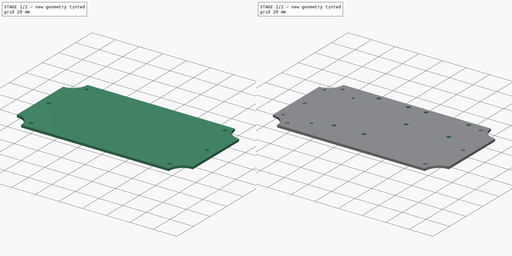
[diagram: build sequence overview — one tinted view per stage of 2, left to right]
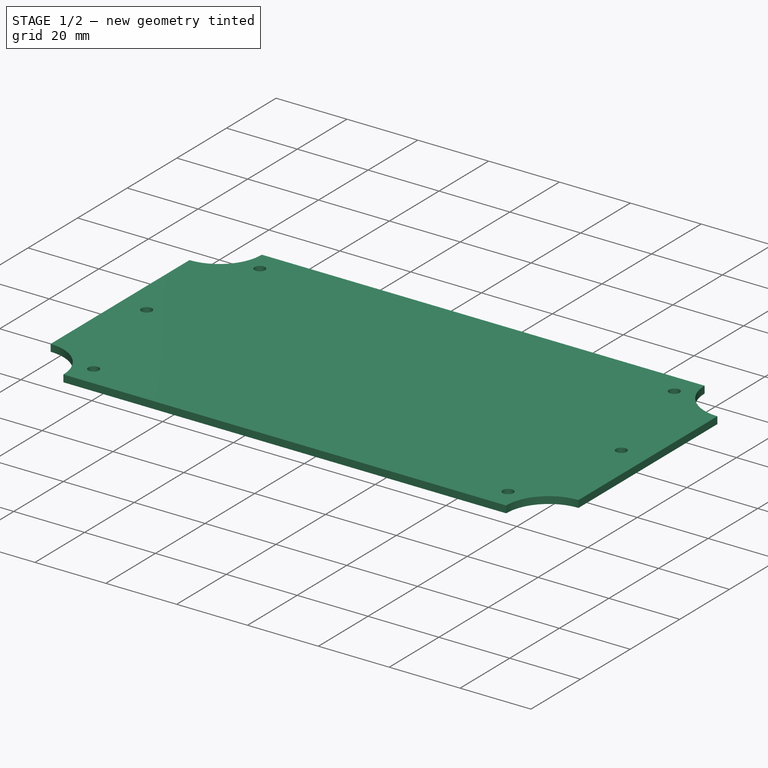
[diagram: stage 1 of 2 — iso view after this stage's code; geometry added in this stage tinted green]
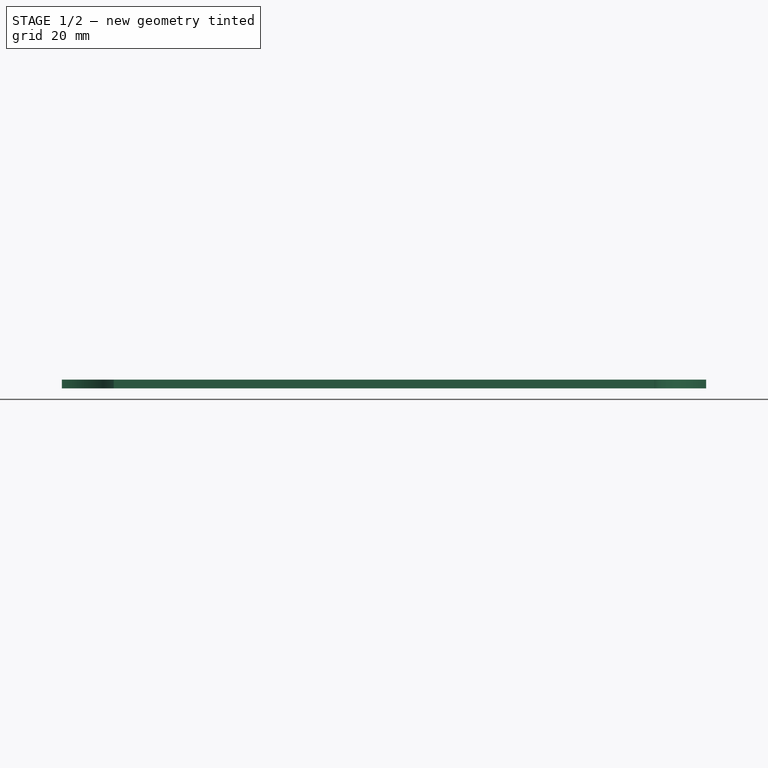
[diagram: stage 1 of 2 — front view after this stage's code; geometry added in this stage tinted green]
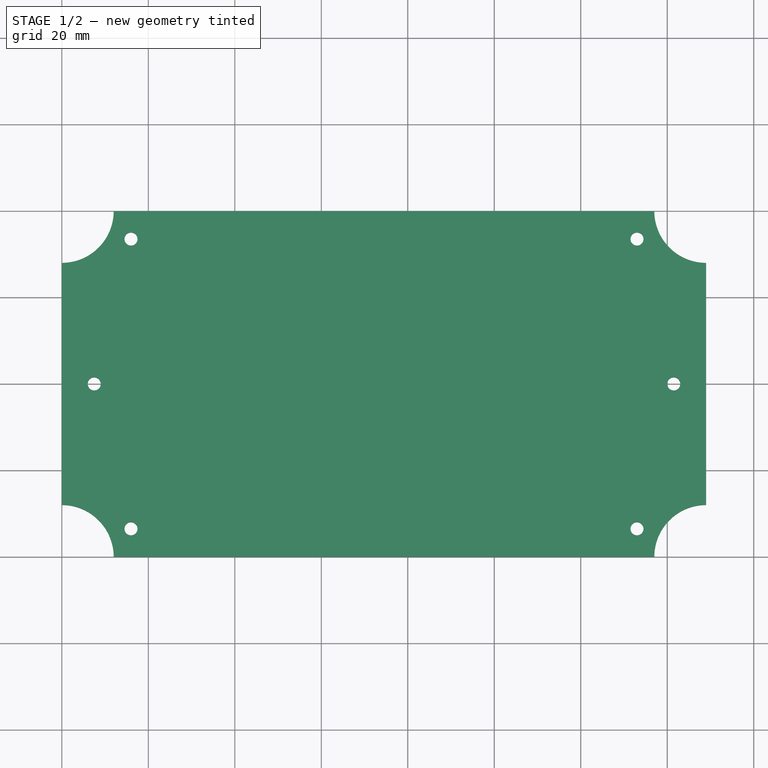
[diagram: stage 1 of 2 — top view after this stage's code; geometry added in this stage tinted green]
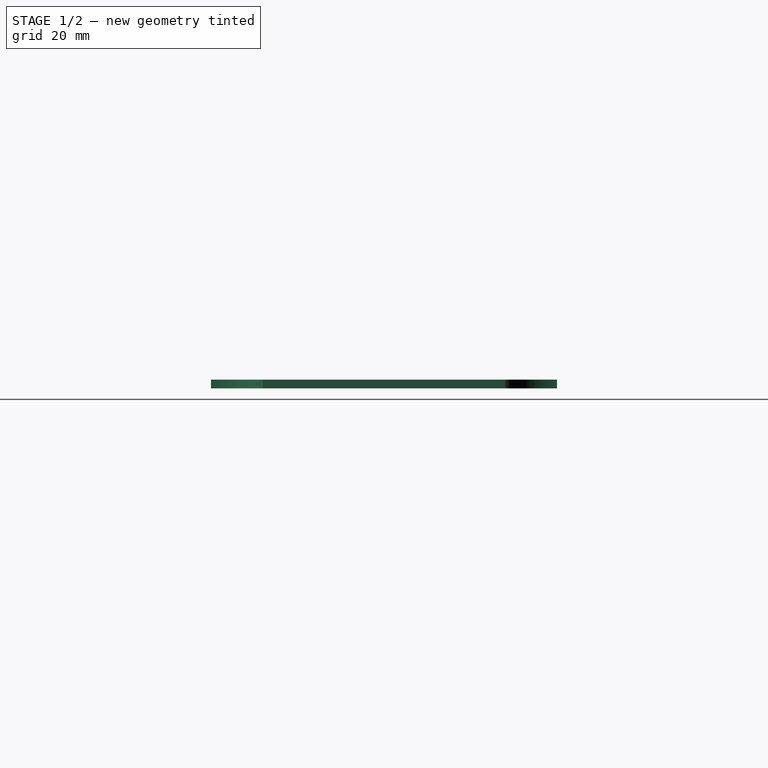
[diagram: stage 1 of 2 — right view after this stage's code; geometry added in this stage tinted green]
FCSTD DOCUMENT  (FreeCAD 0.21R33694 (Git))
Label: fuel-sensor
License: All rights reserved
LicenseURL: http://en.wikipedia.org/wiki/All_rights_reserved
objects: Sketcher::SketchObject×2, PartDesign::Pad×1, PartDesign::Pocket×1, PartDesign::Body×1
note: 7 computed .brp shape members not serialized (recipe doc carries the construction recipe); baked Part::Feature solids carry a one-line shape summary decoded from their .brp

FEATURE [Sketcher::SketchObject] Sketch
  FullyConstrained = true
  MapMode = 5
  Support = -> [XY_Plane]
  sketch-geometry (43):
    g0: LineSegment StartX=-2 StartY=82 StartZ=0 EndX=151 EndY=82 EndZ=0
    g1: LineSegment StartX=151 StartY=82 StartZ=0 EndX=151 EndY=-2 EndZ=0
    g2: LineSegment StartX=151 StartY=-2 StartZ=0 EndX=-2 EndY=-2 EndZ=0
    g3: LineSegment StartX=-2 StartY=-2 StartZ=0 EndX=-2 EndY=82 EndZ=0
    g4: ArcOfCircle CenterX=-2 CenterY=82 CenterZ=0 NormalX=0 NormalY=0 NormalZ=1 AngleXU=0 Radius=10 StartAngle=4.71239 EndAngle=6.28319
    g5: ArcOfCircle CenterX=-2 CenterY=-2 CenterZ=0 NormalX=0 NormalY=0 NormalZ=1 AngleXU=0 Radius=10 StartAngle=0 EndAngle=1.5708
    g6: ArcOfCircle CenterX=151 CenterY=-2 CenterZ=0 NormalX=0 NormalY=0 NormalZ=1 AngleXU=0 Radius=10 StartAngle=1.5708 EndAngle=3.14159
    g7: ArcOfCircle CenterX=151 CenterY=82 CenterZ=0 NormalX=0 NormalY=0 NormalZ=1 AngleXU=0 Radius=10 StartAngle=3.14159 EndAngle=4.71239
    g8: LineSegment StartX=16 StartY=73.5 StartZ=0 EndX=133 EndY=73.5 EndZ=0
    g9: LineSegment StartX=133 StartY=73.5 StartZ=0 EndX=133 EndY=6.5 EndZ=0
    g10: LineSegment StartX=133 StartY=6.5 StartZ=0 EndX=16 EndY=6.5 EndZ=0
    g11: LineSegment StartX=16 StartY=6.5 StartZ=0 EndX=16 EndY=73.5 EndZ=0
    g12: LineSegment StartX=7.5 StartY=40 StartZ=0 EndX=141.5 EndY=40 EndZ=0
    g13: LineSegment StartX=16 StartY=73.5 StartZ=0 EndX=7.5 EndY=40 EndZ=0
    g14: LineSegment StartX=7.5 StartY=40 StartZ=0 EndX=16 EndY=6.5 EndZ=0
    g15: LineSegment StartX=133 StartY=6.5 StartZ=0 EndX=141.5 EndY=40 EndZ=0
    g16: LineSegment StartX=141.5 StartY=40 StartZ=0 EndX=133 EndY=73.5 EndZ=0
    g17: Circle CenterX=16 CenterY=73.5 CenterZ=0 NormalX=0 NormalY=0 NormalZ=1 AngleXU=0 Radius=1.5
    g18: Circle CenterX=7.5 CenterY=40 CenterZ=0 NormalX=0 NormalY=0 NormalZ=1 AngleXU=0 Radius=1.5
    g19: Circle CenterX=16 CenterY=6.5 CenterZ=0 NormalX=0 NormalY=0 NormalZ=1 AngleXU=0 Radius=1.5
    g20: Circle CenterX=133 CenterY=6.5 CenterZ=0 NormalX=0 NormalY=0 NormalZ=1 AngleXU=0 Radius=1.5
    g21: Circle CenterX=141.5 CenterY=40 CenterZ=0 NormalX=0 NormalY=0 NormalZ=1 AngleXU=0 Radius=1.5
    g22: Circle CenterX=133 CenterY=73.5 CenterZ=0 NormalX=0 NormalY=0 NormalZ=1 AngleXU=0 Radius=1.5
    g23: LineSegment StartX=16 StartY=6.5 StartZ=0 EndX=-2 EndY=-2 EndZ=0
    g24: LineSegment StartX=-2 StartY=82 StartZ=0 EndX=16 EndY=73.5 EndZ=0
    g25: LineSegment StartX=133 StartY=73.5 StartZ=0 EndX=151 EndY=82 EndZ=0
    g26: LineSegment StartX=133 StartY=6.5 StartZ=0 EndX=151 EndY=-2 EndZ=0
    g27: LineSegment StartX=0 StartY=80 StartZ=0 EndX=149 EndY=80 EndZ=0
    g28: LineSegment StartX=149 StartY=80 StartZ=0 EndX=149 EndY=0 EndZ=0
    g29: LineSegment StartX=149 StartY=0 StartZ=0 EndX=0 EndY=0 EndZ=0
    g30: LineSegment StartX=0 StartY=0 StartZ=0 EndX=0 EndY=80 EndZ=0
    g31: LineSegment StartX=0 StartY=68 StartZ=0 EndX=0 EndY=12 EndZ=0
    g32: LineSegment StartX=12 StartY=0 StartZ=0 EndX=137 EndY=1.5e-15 EndZ=0
    g33: LineSegment StartX=149 StartY=12 StartZ=0 EndX=149 EndY=68 EndZ=0
    g34: LineSegment StartX=137 StartY=80 StartZ=0 EndX=12 EndY=80 EndZ=0
    g35: ArcOfCircle CenterX=0 CenterY=80 CenterZ=0 NormalX=0 NormalY=0 NormalZ=1 AngleXU=0 Radius=12 StartAngle=4.71239 EndAngle=6.28319
    g36: ArcOfCircle CenterX=0 CenterY=0 CenterZ=0 NormalX=0 NormalY=0 NormalZ=1 AngleXU=0 Radius=12 StartAngle=0 EndAngle=1.5708
    g37: ArcOfCircle CenterX=149 CenterY=0 CenterZ=0 NormalX=0 NormalY=0 NormalZ=1 AngleXU=0 Radius=12 StartAngle=1.5708 EndAngle=3.14159
    g38: ArcOfCircle CenterX=149 CenterY=80 CenterZ=0 NormalX=0 NormalY=0 NormalZ=1 AngleXU=0 Radius=12 StartAngle=3.14159 EndAngle=4.71239
    g39: LineSegment StartX=0 StartY=0 StartZ=0 EndX=-2 EndY=0 EndZ=0
    g40: LineSegment StartX=149 StartY=0 StartZ=0 EndX=151 EndY=0 EndZ=0
    g41: LineSegment StartX=12 StartY=80 StartZ=0 EndX=12 EndY=82 EndZ=0
    g42: LineSegment StartX=12 StartY=0 StartZ=0 EndX=12 EndY=-2 EndZ=0
  constraints (119):
    c: Coincident(g0,g1)
    c: Coincident(g1,g2)
    c: Coincident(g2,g3)
    c: Coincident(g3,g0)
    c: Horizontal(g0)
    c: Horizontal(g2)
    c: Vertical(g1)
    c: Vertical(g3)
    c: DistanceX(g2,g2) = 153
    c: DistanceY(g3,g3) = 84
    c: Coincident(g4,g0)
    c: PointOnObject(g4,g0)
    c: PointOnObject(g4,g3)
    c: Radius(g4) = 10
    c: Coincident(g5,g2)
    c: PointOnObject(g5,g3)
    c: PointOnObject(g5,g2)
    c: Coincident(g6,g1)
    c: PointOnObject(g6,g2)
    c: PointOnObject(g6,g1)
    c: Coincident(g7,g0)
    c: PointOnObject(g7,g1)
    c: PointOnObject(g7,g0)
    c: Equal(g7,g6)
    c: Equal(g6,g5)
    c: Equal(g5,g4)
    c: Coincident(g8,g9)
    c: Coincident(g9,g10)
    c: Coincident(g10,g11)
    c: Coincident(g11,g8)
    c: Horizontal(g8)
    c: Horizontal(g10)
    c: Vertical(g9)
    c: Vertical(g11)
    c: DistanceX(g10,g10) = 117
    c: DistanceY(g11,g11) = 67
    c: Horizontal(g12)
    c: DistanceX(g12,g12) = 134
    c: Coincident(g13,g8)
    c: Coincident(g13,g12)
    c: Coincident(g14,g12)
    c: Coincident(g14,g10)
    c: Coincident(g15,g9)
    c: Coincident(g15,g12)
    c: Coincident(g16,g12)
    c: Coincident(g16,g8)
    c: Equal(g16,g14)
    c: Equal(g14,g13)
    c: Coincident(g17,g8)
    c: Coincident(g18,g12)
    c: Coincident(g19,g10)
    c: Coincident(g20,g9)
    c: Coincident(g21,g12)
    c: Coincident(g22,g8)
    c: Equal(g22,g21)
    c: Equal(g21,g20)
    c: Equal(g20,g19)
    c: Equal(g19,g18)
    c: Equal(g18,g17)
    c: Diameter(g22) = 3
    c: Coincident(g23,g19)
    c: Coincident(g23,g2)
    c: Coincident(g24,g0)
    c: Coincident(g24,g17)
    c: Coincident(g25,g22)
    c: Coincident(g25,g0)
    c: Coincident(g26,g20)
    c: Coincident(g26,g1)
    c: Equal(g26,g23)
    c: Equal(g23,g24)
    c: Coincident(g27,g28)
    c: Coincident(g28,g29)
    c: Coincident(g29,g30)
    c: Coincident(g30,g27)
    c: Horizontal(g27)
    c: Horizontal(g29)
    c: Vertical(g28)
    c: Vertical(g30)
    c: PointOnObject(g31,g30)
    c: PointOnObject(g31,g30)
    c: PointOnObject(g32,g29)
    c: PointOnObject(g32,g29)
    c: PointOnObject(g33,g28)
    c: PointOnObject(g33,g28)
    c: PointOnObject(g34,g27)
    c: PointOnObject(g34,g27)
    c: Equal(g34,g32)
    c: Equal(g33,g31)
    c: Coincident(g35,g27)
    c: Coincident(g35,g31)
    c: Coincident(g35,g34)
    c: Coincident(g36,g29)
    c: Coincident(g36,g31)
    c: Coincident(g36,g32)
    c: Coincident(g37,g28)
    c: Coincident(g37,g32)
    c: Coincident(g37,g33)
    c: Coincident(g38,g27)
    c: Coincident(g38,g33)
    c: Coincident(g38,g34)
    c: Coincident(g36,g-1)
    c: Equal(g35,g36)
    c: Coincident(g39,g36)
    c: PointOnObject(g39,g3)
    c: Horizontal(g39)
    c: Coincident(g40,g37)
    c: PointOnObject(g40,g1)
    c: Horizontal(g40)
    c: Equal(g40,g39)
    c: Coincident(g41,g34)
    c: PointOnObject(g41,g0)
    c: Vertical(g41)
    c: Coincident(g42,g32)
    c: PointOnObject(g42,g2)
    c: Vertical(g42)
    c: Equal(g42,g41)
    c: DistanceY(g34,g7) = 2
    c: DistanceX(g33,g7) = 2
    c: Radius(g35) = 12
FEATURE [PartDesign::Pad] Pad
  Direction = (0,0,1)
  Length = 2
  Length2 = 10
  Profile = -> Sketch
  ReferenceAxis = -> Sketch [N_Axis]
  Type = 0
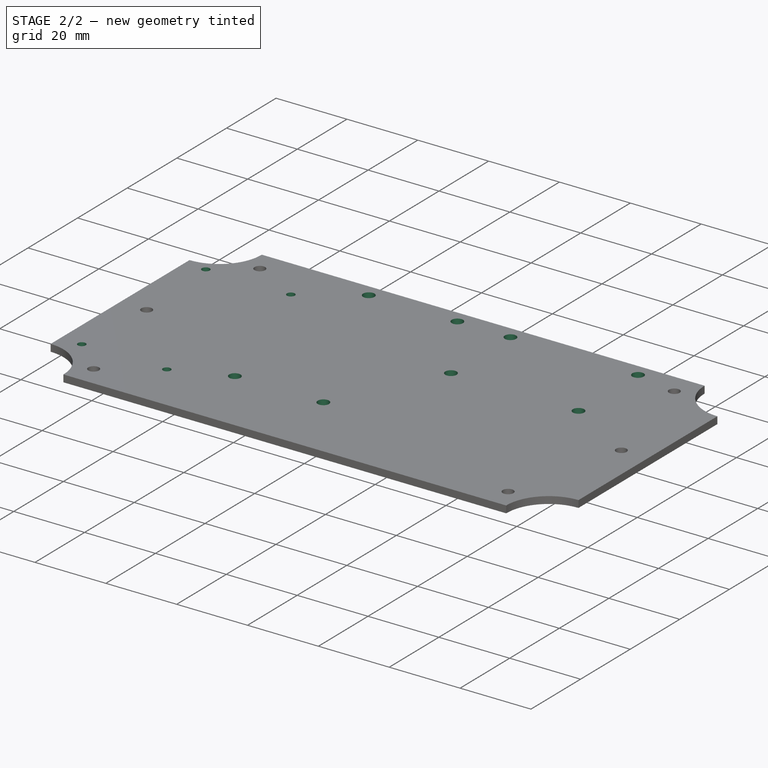
[diagram: stage 2 of 2 — iso view after this stage's code; geometry added in this stage tinted green]
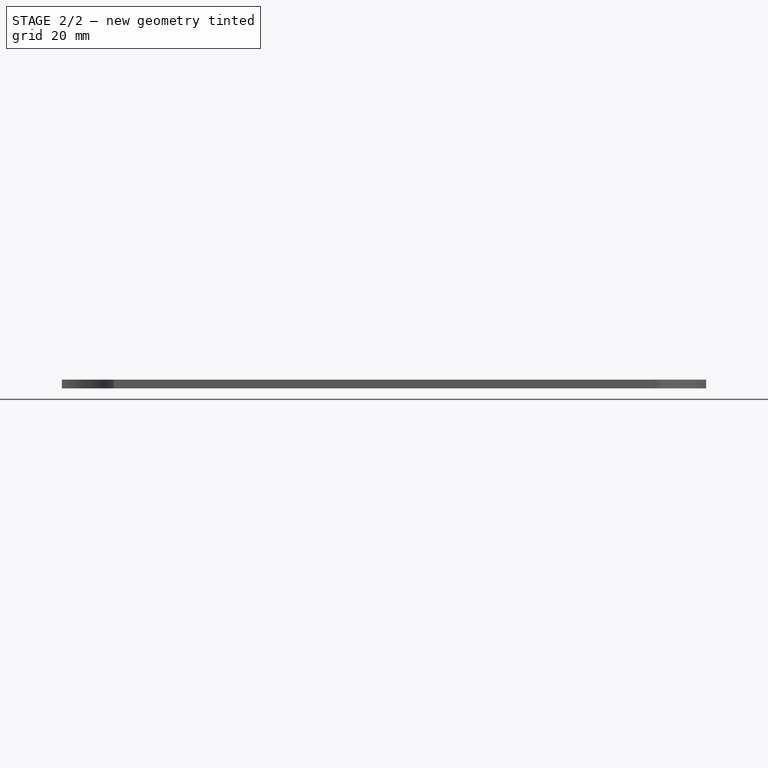
[diagram: stage 2 of 2 — front view after this stage's code; geometry added in this stage tinted green]
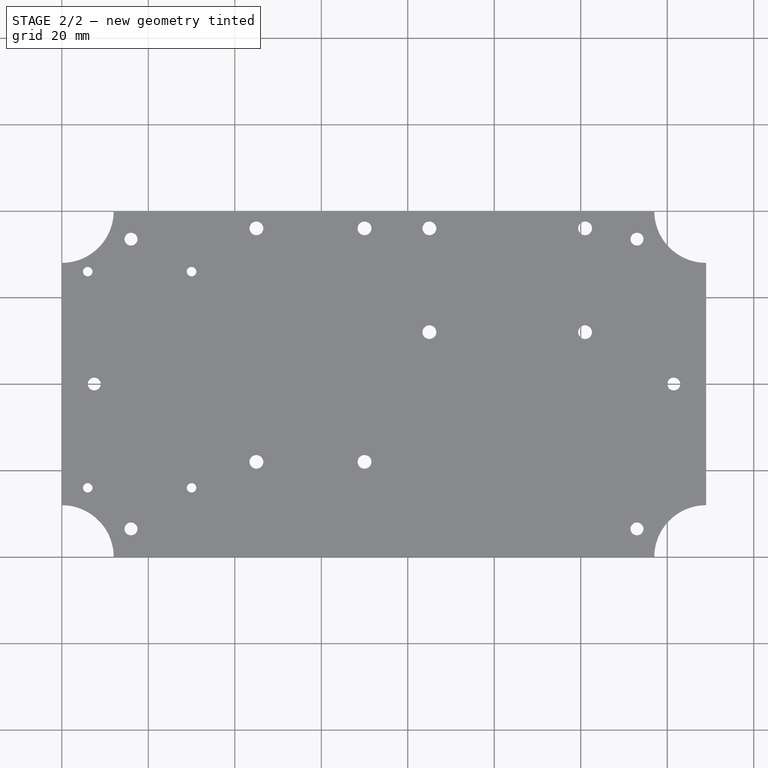
[diagram: stage 2 of 2 — top view after this stage's code; geometry added in this stage tinted green]
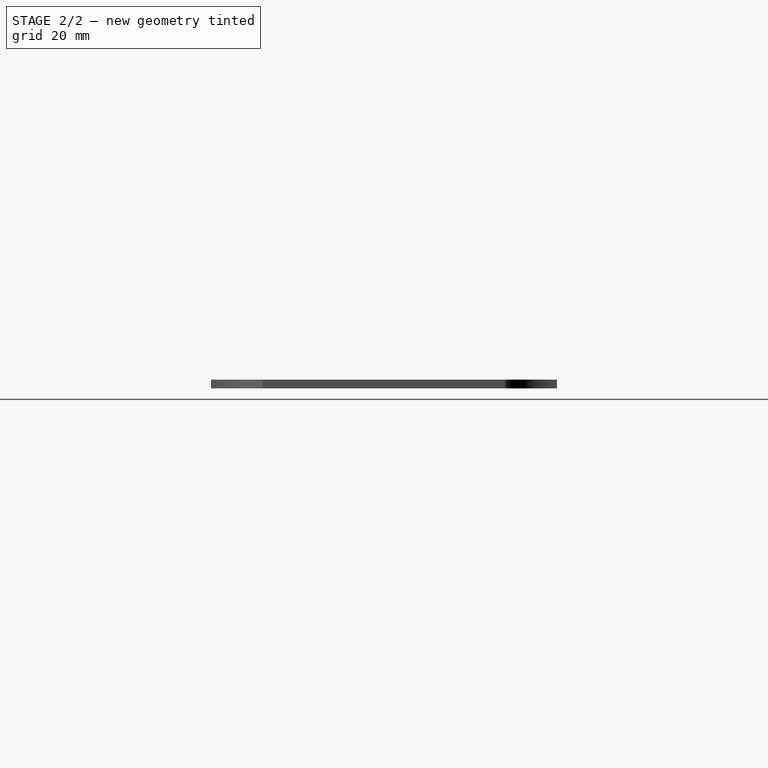
[diagram: stage 2 of 2 — right view after this stage's code; geometry added in this stage tinted green]
FEATURE [Sketcher::SketchObject] Sketch001
  ExternalGeometry = -> [Pad]
  FullyConstrained = true
  MapMode = 5
  Placement = pos=(0,0,2) rot=(0,0,1;0rad)
  Support = -> [Pad]
  sketch-geometry (25):
    g0: LineSegment StartX=6 StartY=66 StartZ=0 EndX=30 EndY=66 EndZ=0
    g1: LineSegment StartX=30 StartY=66 StartZ=0 EndX=30 EndY=16 EndZ=0
    g2: LineSegment StartX=30 StartY=16 StartZ=0 EndX=6 EndY=16 EndZ=0
    g3: LineSegment StartX=6 StartY=16 StartZ=0 EndX=6 EndY=66 EndZ=0
    g4: LineSegment StartX=45 StartY=76 StartZ=0 EndX=70 EndY=76 EndZ=0
    g5: LineSegment StartX=70 StartY=76 StartZ=0 EndX=70 EndY=22 EndZ=0
    g6: LineSegment StartX=70 StartY=22 StartZ=0 EndX=45 EndY=22 EndZ=0
    g7: LineSegment StartX=45 StartY=22 StartZ=0 EndX=45 EndY=76 EndZ=0
    g8: Circle CenterX=6 CenterY=66 CenterZ=0 NormalX=0 NormalY=0 NormalZ=1 AngleXU=0 Radius=1.1
    g9: Circle CenterX=30 CenterY=66 CenterZ=0 NormalX=0 NormalY=0 NormalZ=1 AngleXU=0 Radius=1.1
    g10: Circle CenterX=30 CenterY=16 CenterZ=0 NormalX=0 NormalY=0 NormalZ=1 AngleXU=0 Radius=1.1
    g11: Circle CenterX=6 CenterY=16 CenterZ=0 NormalX=0 NormalY=0 NormalZ=1 AngleXU=0 Radius=1.1
    g12: Circle CenterX=45 CenterY=22 CenterZ=0 NormalX=0 NormalY=0 NormalZ=1 AngleXU=0 Radius=1.6
    g13: Circle CenterX=70 CenterY=22 CenterZ=0 NormalX=0 NormalY=0 NormalZ=1 AngleXU=0 Radius=1.6
    g14: Circle CenterX=70 CenterY=76 CenterZ=0 NormalX=0 NormalY=0 NormalZ=1 AngleXU=0 Radius=1.6
    g15: Circle CenterX=45 CenterY=76 CenterZ=0 NormalX=0 NormalY=0 NormalZ=1 AngleXU=0 Radius=1.6
    g16: LineSegment StartX=85 StartY=76 StartZ=0 EndX=121 EndY=76 EndZ=0
    g17: LineSegment StartX=121 StartY=76 StartZ=0 EndX=121 EndY=52 EndZ=0
    g18: LineSegment StartX=121 StartY=52 StartZ=0 EndX=85 EndY=52 EndZ=0
    g19: LineSegment StartX=85 StartY=52 StartZ=0 EndX=85 EndY=76 EndZ=0
    g20: Circle CenterX=85 CenterY=76 CenterZ=0 NormalX=0 NormalY=0 NormalZ=1 AngleXU=0 Radius=1.6
    g21: Circle CenterX=85 CenterY=52 CenterZ=0 NormalX=0 NormalY=0 NormalZ=1 AngleXU=0 Radius=1.6
    g22: Circle CenterX=121 CenterY=52 CenterZ=0 NormalX=0 NormalY=0 NormalZ=1 AngleXU=0 Radius=1.6
    g23: Circle CenterX=121 CenterY=76 CenterZ=0 NormalX=0 NormalY=0 NormalZ=1 AngleXU=0 Radius=1.6
    g24: LineSegment StartX=70 StartY=76 StartZ=0 EndX=85 EndY=76 EndZ=0
  constraints (62):
    c: Coincident(g0,g1)
    c: Coincident(g1,g2)
    c: Coincident(g2,g3)
    c: Coincident(g3,g0)
    c: Horizontal(g0)
    c: Horizontal(g2)
    c: Vertical(g1)
    c: Vertical(g3)
    c: DistanceX(g2,g2) = 24
    c: DistanceY(g3,g3) = 50
    c: Coincident(g4,g5)
    c: Coincident(g5,g6)
    c: Coincident(g6,g7)
    c: Coincident(g7,g4)
    c: Horizontal(g4)
    c: Horizontal(g6)
    c: Vertical(g5)
    c: Vertical(g7)
    c: DistanceX(g6,g6) = 25
    c: DistanceY(g5,g5) = 54
    c: Coincident(g8,g0)
    c: Coincident(g9,g0)
    c: Coincident(g10,g1)
    c: Coincident(g11,g2)
    c: Coincident(g12,g6)
    c: Coincident(g13,g5)
    c: Coincident(g14,g4)
    c: Coincident(g15,g4)
    c: Equal(g14,g15)
    c: Equal(g15,g12)
    c: Equal(g12,g13)
    c: Diameter(g14) = 3.2
    c: Equal(g10,g9)
    c: Equal(g9,g8)
    c: Equal(g8,g11)
    c: Diameter(g9) = 2.2
    c: DistanceX(g10,g12) = 15
    c: DistanceX(g-6,g11) = 6
    c: DistanceY(g8,g-3) = 14
    c: DistanceY(g15,g-3) = 4
    c: Coincident(g16,g17)
    c: Coincident(g17,g18)
    c: Coincident(g18,g19)
    c: Coincident(g19,g16)
    c: Horizontal(g16)
    c: Horizontal(g18)
    c: Vertical(g17)
    c: Vertical(g19)
    c: DistanceX(g18,g18) = 36
    c: DistanceY(g19,g19) = 24
    c: Coincident(g20,g16)
    c: Coincident(g21,g18)
    c: Coincident(g22,g17)
    c: Coincident(g23,g16)
    c: Equal(g20,g21)
    c: Equal(g21,g22)
    c: Equal(g22,g23)
    c: Diameter(g23) = 3.2
    c: Coincident(g24,g14)
    c: Coincident(g24,g20)
    c: Horizontal(g24)
    c: DistanceX(g24,g24) = 15
FEATURE [PartDesign::Pocket] Pocket
  BaseFeature = -> Pad
  Direction = (0,0,-1)
  Length = 5
  Length2 = 5
  Profile = -> Sketch001
  ReferenceAxis = -> Sketch001 [N_Axis]
  Type = 1
FEATURE [PartDesign::Body] Body
  Group = -> [Sketch,Pad,Sketch001,Pocket]
  Origin = -> Origin
  Tip = -> Pocket
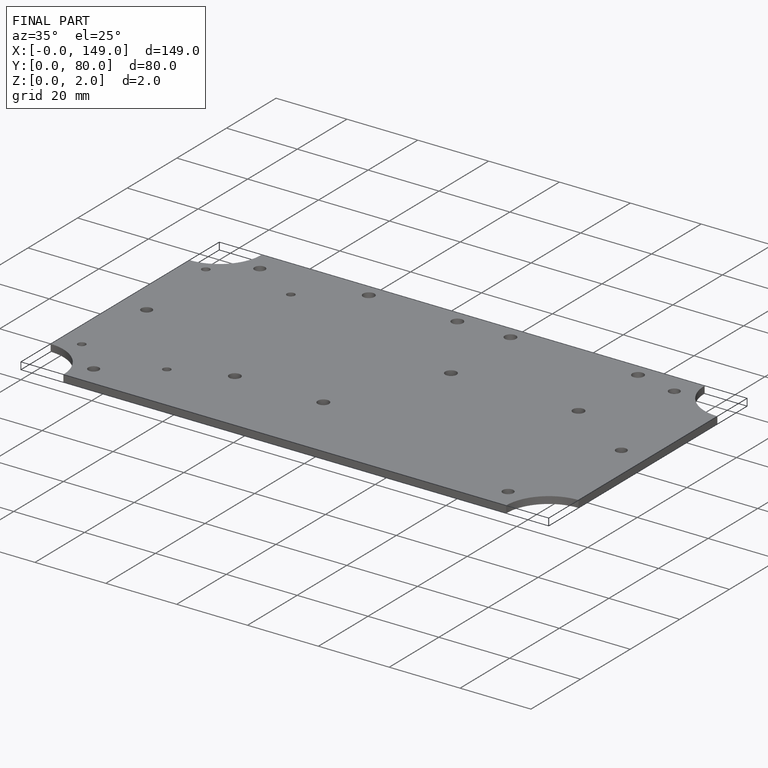
[diagram: finished part — iso view with bounding-box wireframe]
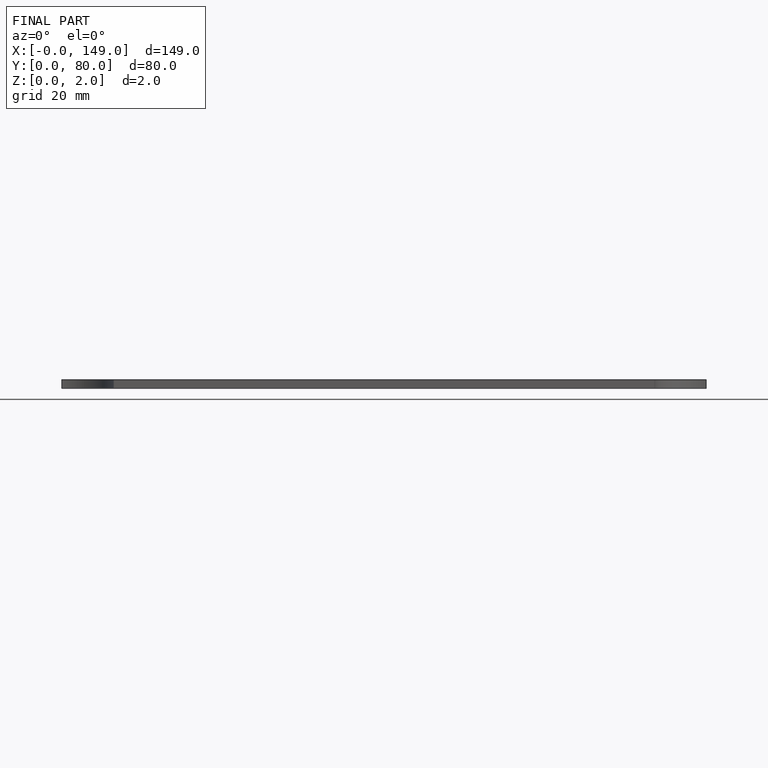
[diagram: finished part — front view with bounding-box wireframe]
